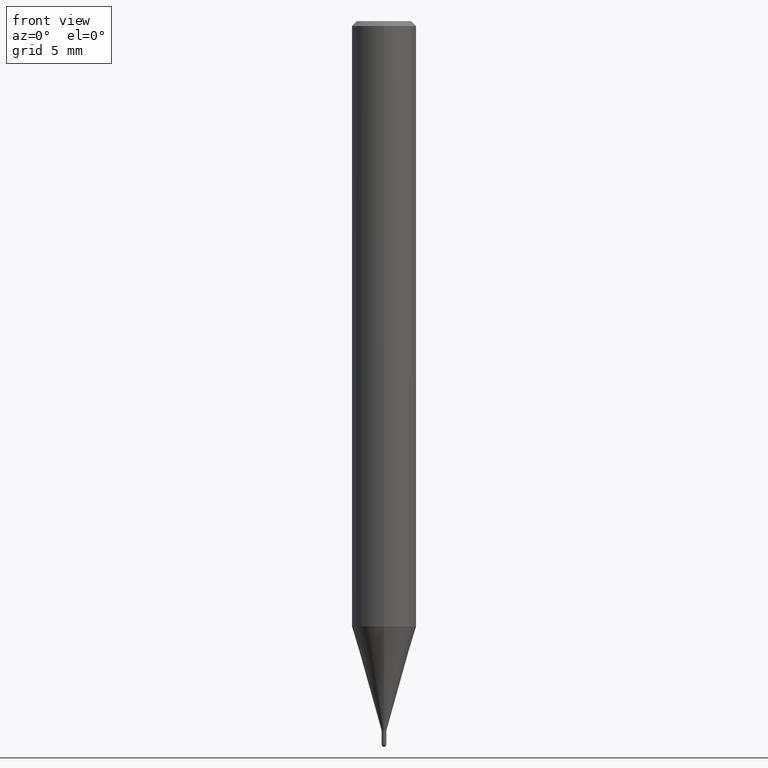
[diagram: clean part render]
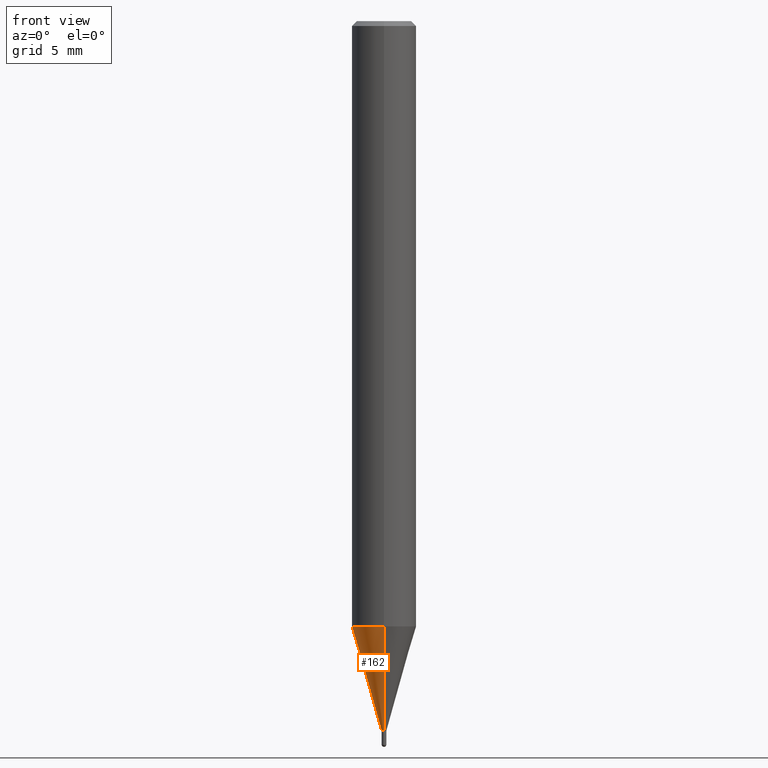
[diagram: same view with one face highlighted and labeled with its STEP entity id]
A machine part, front view. The second image highlights one B-rep face of the part: STEP entity #162.
In plain terms, the highlighted conical surface has half-angle 16 deg.
Its self-contained STEP definition (entity closure, byte-faithful):
#98=EDGE_CURVE('',#116,#100,#239,.T.);
#100=VERTEX_POINT('',#241);
#116=VERTEX_POINT('',#260);
#118=EDGE_CURVE('',#116,#170,#262,.T.);
#126=VERTEX_POINT('',#271);
#162=ADVANCED_FACE('',(#313),#314,.T.);
#168=EDGE_CURVE('',#100,#126,#321,.T.);
#170=VERTEX_POINT('',#323);
#182=EDGE_CURVE('',#126,#170,#335,.T.);
#239=LINE('',#391,#392);
#241=CARTESIAN_POINT('',(2.44915147732706E-016,-1.99995,-37.531));
#260=CARTESIAN_POINT('',(1.77506690986553E-017,-0.14495,-44.0));
#262=CIRCLE('',#419,0.14495);
#271=CARTESIAN_POINT('',(0.0,1.99995,-37.531));
#313=FACE_OUTER_BOUND('',#483,.T.);
#314=CONICAL_SURFACE('',#484,1.07245,0.279258979430111);
#321=CIRCLE('',#494,1.99995);
#323=CARTESIAN_POINT('',(0.0,0.14495,-44.0));
#335=LINE('',#513,#514);
#391=CARTESIAN_POINT('',(1.31332908415681E-016,-1.07245,-40.7655));
#392=VECTOR('',#562,1.0);
#419=AXIS2_PLACEMENT_3D('',#587,#588,#589);
#483=EDGE_LOOP('',(#660,#661,#662,#663));
#484=AXIS2_PLACEMENT_3D('',#664,#665,#666);
#494=AXIS2_PLACEMENT_3D('',#676,#677,#678);
#513=CARTESIAN_POINT('',(-1.31332908415681E-016,1.07245,-40.7655));
#514=VECTOR('',#690,1.0);
#562=DIRECTION('',(3.37554672384358E-017,-0.275643410905672,0.961259959648943));
#587=CARTESIAN_POINT('',(0.0,0.0,-44.0));
#588=DIRECTION('',(0.0,0.0,-1.0));
#589=DIRECTION('',(0.0,1.0,0.0));
#660=ORIENTED_EDGE('',*,*,#182,.T.);
#661=ORIENTED_EDGE('',*,*,#118,.F.);
#662=ORIENTED_EDGE('',*,*,#98,.T.);
#663=ORIENTED_EDGE('',*,*,#168,.T.);
#664=CARTESIAN_POINT('',(0.0,0.0,-40.7655));
#665=DIRECTION('',(-0.0,-0.0,1.0));
#666=DIRECTION('',(0.0,1.0,0.0));
#676=CARTESIAN_POINT('',(0.0,0.0,-37.531));
#677=DIRECTION('',(0.0,0.0,-1.0));
#678=DIRECTION('',(0.0,1.0,0.0));
#690=DIRECTION('',(3.37554672384358E-017,-0.275643410905672,-0.961259959648943));